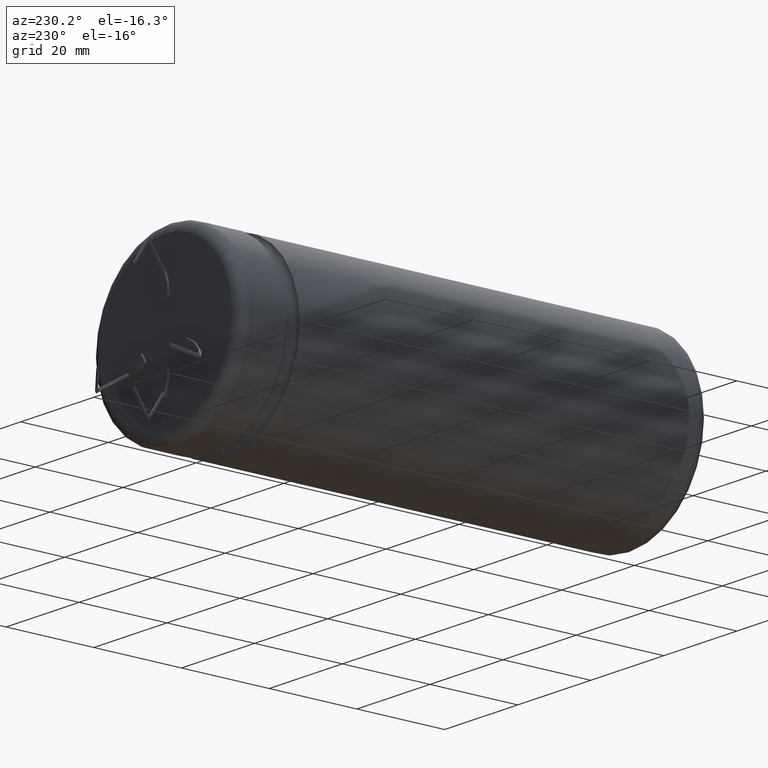
[diagram: clean part render]
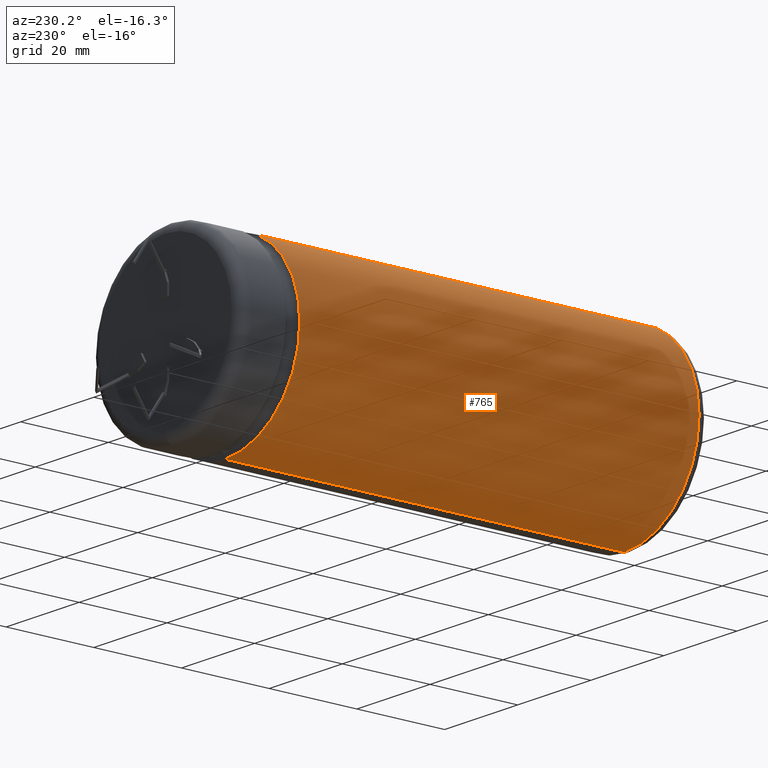
[diagram: same view with one face highlighted and labeled with its STEP entity id]
A machine part, auxiliary view. The second image highlights one B-rep face of the part: STEP entity #765.
In plain terms, the highlighted cylindrical surface (partial cylindrical patch) has radius 20.5 mm, axis along (-0, -1, -0).
Its self-contained STEP definition (entity closure, byte-faithful):
#22 = LINE ( 'NONE', #4273, #4017 ) ;
#73 = ORIENTED_EDGE ( 'NONE', *, *, #4581, .F. ) ;
#97 = EDGE_CURVE ( 'NONE', #2142, #2742, #2068, .T. ) ;
#106 = DIRECTION ( 'NONE',  ( -0.0000000000000000000, 1.000000000000000000, -0.0000000000000000000 ) ) ;
#107 = B_SPLINE_CURVE_WITH_KNOTS ( 'NONE', 3,
 ( #847, #1236, #1990, #4563 ),
 .UNSPECIFIED., .F., .F.,
 ( 4, 4 ),
 ( 0.0000000000000000000, 1.000000000000000000 ),
 .UNSPECIFIED. ) ;
#141 = VERTEX_POINT ( 'NONE', #1164 ) ;
#162 = CARTESIAN_POINT ( 'NONE',  ( -0.5674753198208053500, 6.064561765221945700, 20.49732257852247100 ) ) ;
#163 = CARTESIAN_POINT ( 'NONE',  ( -0.7256537510520075800, 8.120540105953827100, 20.48801072819554000 ) ) ;
#166 = B_SPLINE_CURVE_WITH_KNOTS ( 'NONE', 3,
 ( #2228, #2653, #1838, #1176 ),
 .UNSPECIFIED., .F., .F.,
 ( 4, 4 ),
 ( 0.5076699967697231300, 1.000000000000000000 ),
 .UNSPECIFIED. ) ;
#170 = CARTESIAN_POINT ( 'NONE',  ( -0.9926051864990509400, 7.339448020672878500, 20.48196916501047900 ) ) ;
#184 = CARTESIAN_POINT ( 'NONE',  ( -1.487609038079153600, 7.005761591733911300, 20.44595361801022200 ) ) ;
#188 = CARTESIAN_POINT ( 'NONE',  ( 1.471810051500736800E-010, 11.22587473860310900, 20.49999762134849800 ) ) ;
#198 = EDGE_CURVE ( 'NONE', #3463, #2552, #3583, .T. ) ;
#223 = CARTESIAN_POINT ( 'NONE',  ( -2.643939066426523100E-010, 5.638215953928424900, 20.49999993557945300 ) ) ;
#225 = CARTESIAN_POINT ( 'NONE',  ( -1.487609038079157800, 11.30602379685902100, 20.44595361801022200 ) ) ;
#243 = CARTESIAN_POINT ( 'NONE',  ( -0.9926095621156372200, 11.27930733385464600, 20.48196884664886900 ) ) ;
#253 = CARTESIAN_POINT ( 'NONE',  ( -1.099109105354247200, 18.69498820710443700, 20.47143992718306300 ) ) ;
#263 = CARTESIAN_POINT ( 'NONE',  ( 3.908050081328938400E-009, 9.590142117467486600, 20.49999515539574400 ) ) ;
#284 = CARTESIAN_POINT ( 'NONE',  ( -0.9046361600637224900, 18.63904554929092700, 20.48003011271968900 ) ) ;
#301 = CARTESIAN_POINT ( 'NONE',  ( -1.487609038079153600, 13.95202954761075300, 20.44595361801022200 ) ) ;
#304 = B_SPLINE_CURVE_WITH_KNOTS ( 'NONE', 3,
 ( #4363, #2158, #2540, #2905 ),
 .UNSPECIFIED., .F., .F.,
 ( 4, 4 ),
 ( 0.0000000000000000000, 0.4923300032275103000 ),
 .UNSPECIFIED. ) ;
#323 = EDGE_CURVE ( 'NONE', #4175, #4547, #3081, .T. ) ;
#330 = CARTESIAN_POINT ( 'NONE',  ( -8.792321618209400800E-010, 3.805932654816530200, 20.49998773084443100 ) ) ;
#333 = AXIS2_PLACEMENT_3D ( 'NONE', #3186, #953, #930 ) ;
#359 = VERTEX_POINT ( 'NONE', #2803 ) ;
#380 = DIRECTION ( 'NONE',  ( -0.0000000000000000000, -1.000000000000000000, -0.0000000000000000000 ) ) ;
#386 = VECTOR ( 'NONE', #3260, 1000.000000000000000 ) ;
#396 = CARTESIAN_POINT ( 'NONE',  ( -0.1169219906838780100, 9.242661177577039300, 20.49999996244456900 ) ) ;
#456 = DIRECTION ( 'NONE',  ( 0.0000000000000000000, -1.000000000000000000, 0.0000000000000000000 ) ) ;
#476 = CARTESIAN_POINT ( 'NONE',  ( -0.1067635124500709000, 5.593961633424571600, 20.49972198719800400 ) ) ;
#508 = CARTESIAN_POINT ( 'NONE',  ( -2.643939066426523100E-010, 5.638215953928424900, 20.49999993557945300 ) ) ;
#556 = CARTESIAN_POINT ( 'NONE',  ( -0.4963054917962677100, 11.25259107606801500, 20.49999138178590700 ) ) ;
#560 = VECTOR ( 'NONE', #1940, 1000.000000000000000 ) ;
#573 = DIRECTION ( 'NONE',  ( -0.0000000000000000000, -1.000000000000000000, -0.0000000000000000000 ) ) ;
#645 = CARTESIAN_POINT ( 'NONE',  ( 0.0000000000000000000, 107.0000000000000000, -20.50000000000000000 ) ) ;
#656 = VECTOR ( 'NONE', #2720, 1000.000000000000000 ) ;
#659 = CARTESIAN_POINT ( 'NONE',  ( -0.9926051860871243400, 13.80927270982353700, 20.48196916504045000 ) ) ;
#675 = AXIS2_PLACEMENT_3D ( 'NONE', #2299, #106, #1547 ) ;
#678 = ORIENTED_EDGE ( 'NONE', *, *, #3660, .F. ) ;
#694 = EDGE_LOOP ( 'NONE', ( #1502, #760, #2605, #3735, #1228, #73, #4393, #4497, #2736, #4444, #3828, #3578, #1627, #3727, #3699, #2051, #1823, #3266, #2014, #4618, #1761, #3972, #1598, #2122, #3797, #2032, #4500, #3857, #3798, #678, #4283, #1025, #3374, #4191, #1607 ) ) ;
#703 = CARTESIAN_POINT ( 'NONE',  ( -8.799120396329749000E-010, 13.15961153051858000, 20.49998773082111500 ) ) ;
#751 = CARTESIAN_POINT ( 'NONE',  ( -8.806211603291655700E-010, 13.52376457376976400, 20.49998773079722600 ) ) ;
#760 = ORIENTED_EDGE ( 'NONE', *, *, #4679, .F. ) ;
#765 = ADVANCED_FACE ( 'NONE', ( #1585 ), #1181, .T. ) ;
#780 = CARTESIAN_POINT ( 'NONE',  ( -0.3507488586148771500, 9.309453963844873700, 20.49699917642044200 ) ) ;
#793 = CARTESIAN_POINT ( 'NONE',  ( 2.708323434482929300E-012, 9.209264784675586000, 20.49999998710253700 ) ) ;
#819 = CARTESIAN_POINT ( 'NONE',  ( -0.2338439805220736100, 9.276057570217599100, 20.49899967669878000 ) ) ;
#836 = EDGE_CURVE ( 'NONE', #2742, #4386, #3418, .T. ) ;
#847 = CARTESIAN_POINT ( 'NONE',  ( -0.1992673543678380700, 4.725246544320424600, 20.49903150203646300 ) ) ;
#873 = CARTESIAN_POINT ( 'NONE',  ( -0.3507488586148730900, 8.011420447885997800, 20.49699917642044200 ) ) ;
#878 = VERTEX_POINT ( 'NONE', #4320 ) ;
#921 = DIRECTION ( 'NONE',  ( 0.0000000000000000000, -1.000000000000000000, 0.0000000000000000000 ) ) ;
#930 = DIRECTION ( 'NONE',  ( 0.0000000000000000000, 0.0000000000000000000, -1.000000000000000000 ) ) ;
#942 = CARTESIAN_POINT ( 'NONE',  ( -1.487609038079157800, 18.80687351959829800, 20.44595361801022200 ) ) ;
#953 = DIRECTION ( 'NONE',  ( -0.0000000000000000000, -1.000000000000000000, -0.0000000000000000000 ) ) ;
#970 = CARTESIAN_POINT ( 'NONE',  ( -8.813040468022290400E-010, 7.053816141572133000, 20.49998773077389600 ) ) ;
#971 = VERTEX_POINT ( 'NONE', #2495 ) ;
#973 = DIRECTION ( 'NONE',  ( 0.0000000000000000000, -1.000000000000000000, 0.0000000000000000000 ) ) ;
#1000 = CARTESIAN_POINT ( 'NONE',  ( -0.9046580500798630000, 18.36304375062566400, 20.48002914580215600 ) ) ;
#1015 = B_SPLINE_CURVE_WITH_KNOTS ( 'NONE', 3,
 ( #2550, #4036, #1821, #2201 ),
 .UNSPECIFIED., .F., .F.,
 ( 4, 4 ),
 ( 0.0000000000000000000, 1.000000000000000000 ),
 .UNSPECIFIED. ) ;
#1025 = ORIENTED_EDGE ( 'NONE', *, *, #1130, .F. ) ;
#1043 = CARTESIAN_POINT ( 'NONE',  ( -1.487609038079153600, 10.01811258485629700, 20.44595361801022200 ) ) ;
#1046 = EDGE_CURVE ( 'NONE', #2254, #3288, #22, .T. ) ;
#1079 = EDGE_CURVE ( 'NONE', #2924, #1403, #3800, .T. ) ;
#1106 = EDGE_CURVE ( 'NONE', #2849, #2255, #3764, .T. ) ;
#1111 = VERTEX_POINT ( 'NONE', #1118 ) ;
#1118 = CARTESIAN_POINT ( 'NONE',  ( -0.9129696222697449800, 9.552968582505579700, 20.47966031136289900 ) ) ;
#1130 = EDGE_CURVE ( 'NONE', #971, #141, #3001, .T. ) ;
#1140 = VERTEX_POINT ( 'NONE', #703 ) ;
#1164 = CARTESIAN_POINT ( 'NONE',  ( -1.487609038079157800, 16.19708683617947300, 20.44595361801022200 ) ) ;
#1176 = CARTESIAN_POINT ( 'NONE',  ( -1.487609038079153600, 13.58768636036115900, 20.44595361801022200 ) ) ;
#1181 = CYLINDRICAL_SURFACE ( 'NONE', #333, 20.50000000000000000 ) ;
#1185 = CARTESIAN_POINT ( 'NONE',  ( 0.0000000000000000000, 93.42314000000000400, 20.50000000000000000 ) ) ;
#1228 = ORIENTED_EDGE ( 'NONE', *, *, #2714, .F. ) ;
#1236 = CARTESIAN_POINT ( 'NONE',  ( -0.6291296488336007900, 4.848472119278113700, 20.49485288890772900 ) ) ;
#1244 = CARTESIAN_POINT ( 'NONE',  ( -1.487609038079157800, 7.005761591733911300, 20.44595361801022200 ) ) ;
#1259 = CARTESIAN_POINT ( 'NONE',  ( -0.07117598858856702400, 5.608713076750726500, 20.49990732868943200 ) ) ;
#1268 = VECTOR ( 'NONE', #380, 1000.000000000000000 ) ;
#1278 = CARTESIAN_POINT ( 'NONE',  ( -1.028105623805817700, 6.535161459936540000, 20.47938622012172900 ) ) ;
#1281 = CARTESIAN_POINT ( 'NONE',  ( 3.908050081328938400E-009, 9.590142117467486600, 20.49999515539574400 ) ) ;
#1300 = DIRECTION ( 'NONE',  ( 0.0000000000000000000, 1.000000000000000000, 0.0000000000000000000 ) ) ;
#1310 = B_SPLINE_CURVE_WITH_KNOTS ( 'NONE', 3,
 ( #188, #556, #243, #225 ),
 .UNSPECIFIED., .F., .F.,
 ( 4, 4 ),
 ( 0.3108603276531529100, 1.000000000000000000 ),
 .UNSPECIFIED. ) ;
#1354 = EDGE_CURVE ( 'NONE', #4673, #2142, #2735, .T. ) ;
#1403 = VERTEX_POINT ( 'NONE', #3037 ) ;
#1411 = VECTOR ( 'NONE', #3647, 1000.000000000000000 ) ;
#1439 = CARTESIAN_POINT ( 'NONE',  ( -1.104661260160899400, 9.607467109760246900, 20.47111482576513800 ) ) ;
#1444 = EDGE_CURVE ( 'NONE', #1480, #2924, #1759, .T. ) ;
#1479 = CARTESIAN_POINT ( 'NONE',  ( -0.4963025244733989500, 13.66651861923412500, 20.49997595631639800 ) ) ;
#1480 = VERTEX_POINT ( 'NONE', #476 ) ;
#1502 = ORIENTED_EDGE ( 'NONE', *, *, #1354, .F. ) ;
#1519 = CARTESIAN_POINT ( 'NONE',  ( -1.487609038079153600, 13.58768636036115900, 20.44595361801022200 ) ) ;
#1536 = EDGE_CURVE ( 'NONE', #4391, #3540, #3845, .T. ) ;
#1546 = VECTOR ( 'NONE', #2061, 1000.000000000000000 ) ;
#1547 = DIRECTION ( 'NONE',  ( 0.0000000000000000000, 0.0000000000000000000, 1.000000000000000000 ) ) ;
#1581 = CARTESIAN_POINT ( 'NONE',  ( 2.708323434482929300E-012, 9.209264784675586000, 20.49999998710253700 ) ) ;
#1585 = FACE_OUTER_BOUND ( 'NONE', #694, .T. ) ;
#1598 = ORIENTED_EDGE ( 'NONE', *, *, #3338, .F. ) ;
#1607 = ORIENTED_EDGE ( 'NONE', *, *, #97, .F. ) ;
#1627 = ORIENTED_EDGE ( 'NONE', *, *, #3368, .F. ) ;
#1663 = VECTOR ( 'NONE', #3111, 1000.000000000000000 ) ;
#1664 = B_SPLINE_CURVE_WITH_KNOTS ( 'NONE', 3,
 ( #508, #3441, #1259, #3478 ),
 .UNSPECIFIED., .F., .F.,
 ( 4, 4 ),
 ( 0.9349822453035107100, 1.000000000000000000 ),
 .UNSPECIFIED. ) ;
#1666 = CARTESIAN_POINT ( 'NONE',  ( -4.398895645336903300E-009, 17.55091877952359200, 20.49999542117416200 ) ) ;
#1691 = EDGE_CURVE ( 'NONE', #4547, #3193, #2903, .T. ) ;
#1717 = DIRECTION ( 'NONE',  ( 0.0000000000000000000, -1.000000000000000000, 0.0000000000000000000 ) ) ;
#1724 = CARTESIAN_POINT ( 'NONE',  ( -0.9046799400944534100, 18.08704195196038700, 20.48002817884953000 ) ) ;
#1726 = CARTESIAN_POINT ( 'NONE',  ( 1.471810051500736800E-010, 11.22587473860310900, 20.49999762134849800 ) ) ;
#1730 = CARTESIAN_POINT ( 'NONE',  ( -1.487609038079153600, 5.094923105737295000, 20.44595361801022200 ) ) ;
#1756 = CIRCLE ( 'NONE', #675, 20.50000000000000000 ) ;
#1759 = B_SPLINE_CURVE_WITH_KNOTS ( 'NONE', 3,
 ( #3432, #162, #1278, #3830 ),
 .UNSPECIFIED., .F., .F.,
 ( 4, 4 ),
 ( 0.0000000000000000000, 1.000000000000000000 ),
 .UNSPECIFIED. ) ;
#1761 = ORIENTED_EDGE ( 'NONE', *, *, #2565, .F. ) ;
#1772 = CARTESIAN_POINT ( 'NONE',  ( 7.579655199466190600E-009, 11.52282658626166000, 20.49999761387757100 ) ) ;
#1786 = LINE ( 'NONE', #4229, #1546 ) ;
#1796 = CARTESIAN_POINT ( 'NONE',  ( -0.6033290408717298900, 17.72433261819313100, 20.49334030520615000 ) ) ;
#1803 = EDGE_CURVE ( 'NONE', #2120, #1480, #1664, .T. ) ;
#1821 = CARTESIAN_POINT ( 'NONE',  ( -0.6291295622174023500, 5.153670045446139300, 20.49485288974971200 ) ) ;
#1823 = ORIENTED_EDGE ( 'NONE', *, *, #1923, .F. ) ;
#1838 = CARTESIAN_POINT ( 'NONE',  ( -0.9926051856652929900, 13.44499290460503700, 20.48196916507113800 ) ) ;
#1892 = CARTESIAN_POINT ( 'NONE',  ( -1.296232898158105700, 9.661965634128124600, 20.45987778514559700 ) ) ;
#1895 = CARTESIAN_POINT ( 'NONE',  ( -0.9047018301075023800, 17.81104015329511400, 20.48002721186180600 ) ) ;
#1923 = EDGE_CURVE ( 'NONE', #3193, #1111, #4228, .T. ) ;
#1937 = B_SPLINE_CURVE_WITH_KNOTS ( 'NONE', 3,
 ( #301, #659, #1479, #2196 ),
 .UNSPECIFIED., .F., .F.,
 ( 4, 4 ),
 ( 0.0000000000000000000, 0.4923300032331090500 ),
 .UNSPECIFIED. ) ;
#1940 = DIRECTION ( 'NONE',  ( -0.0000000000000000000, -1.000000000000000000, -0.0000000000000000000 ) ) ;
#1990 = CARTESIAN_POINT ( 'NONE',  ( -1.058859780637150900, 4.971697530779607600, 20.47714860565210800 ) ) ;
#2004 = CARTESIAN_POINT ( 'NONE',  ( 0.0000000000000000000, 2.361600000000005500, 0.0000000000000000000 ) ) ;
#2012 = EDGE_CURVE ( 'NONE', #359, #2254, #107, .T. ) ;
#2014 = ORIENTED_EDGE ( 'NONE', *, *, #323, .F. ) ;
#2015 = DIRECTION ( 'NONE',  ( 0.0000000000000000000, 0.0000000000000000000, 1.000000000000000000 ) ) ;
#2032 = ORIENTED_EDGE ( 'NONE', *, *, #4588, .F. ) ;
#2035 = CARTESIAN_POINT ( 'NONE',  ( -1.487609038079157800, 13.58768636036117300, 20.44595361801022200 ) ) ;
#2051 = ORIENTED_EDGE ( 'NONE', *, *, #4003, .F. ) ;
#2061 = DIRECTION ( 'NONE',  ( 0.0000000000000000000, -1.000000000000000000, 0.0000000000000000000 ) ) ;
#2068 = B_SPLINE_CURVE_WITH_KNOTS ( 'NONE', 3,
 ( #4027, #4004, #1796, #1895 ),
 .UNSPECIFIED., .F., .F.,
 ( 4, 4 ),
 ( 0.6291467272315028900, 1.000000000000000000 ),
 .UNSPECIFIED. ) ;
#2079 = CARTESIAN_POINT ( 'NONE',  ( -8.813040468022290400E-010, 7.053816141572133000, 20.49998773077389600 ) ) ;
#2099 = VECTOR ( 'NONE', #3470, 1000.000000000000000 ) ;
#2108 = CARTESIAN_POINT ( 'NONE',  ( 2.510525938252074500E-015, 93.42314000000000400, -20.50000000000000000 ) ) ;
#2110 = VERTEX_POINT ( 'NONE', #3834 ) ;
#2114 = DIRECTION ( 'NONE',  ( 0.0000000000000000000, -1.000000000000000000, 0.0000000000000000000 ) ) ;
#2120 = VERTEX_POINT ( 'NONE', #223 ) ;
#2122 = ORIENTED_EDGE ( 'NONE', *, *, #3962, .F. ) ;
#2130 = VERTEX_POINT ( 'NONE', #4642 ) ;
#2133 = CARTESIAN_POINT ( 'NONE',  ( 0.0000000000000000000, 2.361600000000005500, 20.49999999999999600 ) ) ;
#2142 = VERTEX_POINT ( 'NONE', #1666 ) ;
#2158 = CARTESIAN_POINT ( 'NONE',  ( -0.9926051852536280600, 4.091190285856305000, 20.48196916510109500 ) ) ;
#2196 = CARTESIAN_POINT ( 'NONE',  ( -8.806211603291655700E-010, 13.52376457376976400, 20.49998773079722600 ) ) ;
#2201 = CARTESIAN_POINT ( 'NONE',  ( -0.1992673543678380700, 4.725246544320424600, 20.49903150203646300 ) ) ;
#2226 = VERTEX_POINT ( 'NONE', #3218 ) ;
#2228 = CARTESIAN_POINT ( 'NONE',  ( -8.799120396329749000E-010, 13.15961153051858000, 20.49998773082111500 ) ) ;
#2254 = VERTEX_POINT ( 'NONE', #1730 ) ;
#2255 = VERTEX_POINT ( 'NONE', #263 ) ;
#2292 = CARTESIAN_POINT ( 'NONE',  ( -0.9129696222697490900, 8.175099936300487300, 20.47966031136289900 ) ) ;
#2299 = CARTESIAN_POINT ( 'NONE',  ( 0.0000000000000000000, 93.42314000000000400, 0.0000000000000000000 ) ) ;
#2318 = CARTESIAN_POINT ( 'NONE',  ( 2.510525938252074500E-015, 107.0000000000000000, 20.50000000000000000 ) ) ;
#2353 = CARTESIAN_POINT ( 'NONE',  ( -0.5382233186258208500, 8.065980278232658000, 20.49379107496606200 ) ) ;
#2370 = CARTESIAN_POINT ( 'NONE',  ( -1.487609038079153600, 10.01811258485629700, 20.44595361801022200 ) ) ;
#2395 = CARTESIAN_POINT ( 'NONE',  ( 2.510525938252074500E-015, 107.0000000000000000, 20.50000000000000000 ) ) ;
#2495 = CARTESIAN_POINT ( 'NONE',  ( -1.487609038079157800, 18.80687351959829800, 20.44595361801022200 ) ) ;
#2499 = CARTESIAN_POINT ( 'NONE',  ( 2.510525938252074500E-015, 107.0000000000000000, 20.50000000000000000 ) ) ;
#2520 = VERTEX_POINT ( 'NONE', #970 ) ;
#2526 = CARTESIAN_POINT ( 'NONE',  ( -0.9926085831754789500, 9.875454890744265400, 20.48196891787470600 ) ) ;
#2540 = CARTESIAN_POINT ( 'NONE',  ( -0.4963025240457471500, 3.948561447790754900, 20.49997595640897100 ) ) ;
#2550 = CARTESIAN_POINT ( 'NONE',  ( -1.487609038079157800, 6.010516738381363100, 20.44595361801022200 ) ) ;
#2552 = VERTEX_POINT ( 'NONE', #1726 ) ;
#2565 = EDGE_CURVE ( 'NONE', #2255, #3513, #4160, .T. ) ;
#2605 = ORIENTED_EDGE ( 'NONE', *, *, #3078, .T. ) ;
#2627 = AXIS2_PLACEMENT_3D ( 'NONE', #2004, #1300, #2015 ) ;
#2635 = CARTESIAN_POINT ( 'NONE',  ( -0.9129696222697490900, 8.175099936300487300, 20.47966031136289900 ) ) ;
#2646 = LINE ( 'NONE', #645, #3608 ) ;
#2653 = CARTESIAN_POINT ( 'NONE',  ( -0.4963025242569632500, 13.30230219500781400, 20.49997595636325100 ) ) ;
#2659 = CARTESIAN_POINT ( 'NONE',  ( -1.487609038079157800, 9.716464161382790000, 20.44595361801022200 ) ) ;
#2679 = VECTOR ( 'NONE', #921, 1000.000000000000000 ) ;
#2714 = EDGE_CURVE ( 'NONE', #4072, #3450, #3228, .T. ) ;
#2720 = DIRECTION ( 'NONE',  ( 0.0000000000000000000, 1.000000000000000000, 0.0000000000000000000 ) ) ;
#2725 = B_SPLINE_CURVE_WITH_KNOTS ( 'NONE', 3,
 ( #284, #253, #3202, #942 ),
 .UNSPECIFIED., .F., .F.,
 ( 4, 4 ),
 ( 0.0000000000000000000, 1.000000000000000000 ),
 .UNSPECIFIED. ) ;
#2729 = CARTESIAN_POINT ( 'NONE',  ( -0.9129696222697490900, 8.175099936300487300, 20.47966031136289900 ) ) ;
#2735 = LINE ( 'NONE', #2318, #3856 ) ;
#2736 = ORIENTED_EDGE ( 'NONE', *, *, #2979, .F. ) ;
#2737 = LINE ( 'NONE', #4612, #3196 ) ;
#2742 = VERTEX_POINT ( 'NONE', #4636 ) ;
#2770 = CIRCLE ( 'NONE', #2627, 20.50000000000000000 ) ;
#2790 = CARTESIAN_POINT ( 'NONE',  ( 2.510525938252074500E-015, 107.0000000000000000, 20.50000000000000000 ) ) ;
#2803 = CARTESIAN_POINT ( 'NONE',  ( -0.1992673543678380700, 4.725246544320424600, 20.49903150203646300 ) ) ;
#2815 = VECTOR ( 'NONE', #456, 1000.000000000000000 ) ;
#2836 = CARTESIAN_POINT ( 'NONE',  ( 2.510525938252074500E-015, 107.0000000000000000, 20.50000000000000000 ) ) ;
#2849 = VERTEX_POINT ( 'NONE', #2370 ) ;
#2863 = CARTESIAN_POINT ( 'NONE',  ( -0.3507488586148730900, 8.011420447885997800, 20.49699917642044200 ) ) ;
#2903 = B_SPLINE_CURVE_WITH_KNOTS ( 'NONE', 3,
 ( #873, #2353, #163, #2729 ),
 .UNSPECIFIED., .F., .F.,
 ( 4, 4 ),
 ( 0.0000000000000000000, 1.000000000000000000 ),
 .UNSPECIFIED. ) ;
#2905 = CARTESIAN_POINT ( 'NONE',  ( -8.792321618209400800E-010, 3.805932654816530200, 20.49998773084443100 ) ) ;
#2922 = EDGE_CURVE ( 'NONE', #2226, #3450, #2770, .T. ) ;
#2924 = VERTEX_POINT ( 'NONE', #184 ) ;
#2967 = CARTESIAN_POINT ( 'NONE',  ( -0.4963055410842323600, 11.76897795808321800, 20.49999135508178600 ) ) ;
#2979 = EDGE_CURVE ( 'NONE', #1403, #359, #1015, .T. ) ;
#3001 = LINE ( 'NONE', #3596, #1411 ) ;
#3002 = VERTEX_POINT ( 'NONE', #751 ) ;
#3037 = CARTESIAN_POINT ( 'NONE',  ( -1.487609038079157800, 6.010516738381363100, 20.44595361801022200 ) ) ;
#3078 = EDGE_CURVE ( 'NONE', #3996, #2226, #2646, .T. ) ;
#3081 = LINE ( 'NONE', #3814, #2099 ) ;
#3111 = DIRECTION ( 'NONE',  ( -0.0000000000000000000, -1.000000000000000000, -0.0000000000000000000 ) ) ;
#3133 = CARTESIAN_POINT ( 'NONE',  ( 2.510525938252074500E-015, 107.0000000000000000, 20.50000000000000000 ) ) ;
#3139 = EDGE_CURVE ( 'NONE', #1140, #4391, #166, .T. ) ;
#3140 = EDGE_CURVE ( 'NONE', #3513, #4175, #4660, .T. ) ;
#3165 = B_SPLINE_CURVE_WITH_KNOTS ( 'NONE', 3,
 ( #4365, #1439, #1892, #3744 ),
 .UNSPECIFIED., .F., .F.,
 ( 4, 4 ),
 ( 0.0000000000000000000, 1.000000000000000000 ),
 .UNSPECIFIED. ) ;
#3186 = CARTESIAN_POINT ( 'NONE',  ( 0.0000000000000000000, 107.0000000000000000, 0.0000000000000000000 ) ) ;
#3193 = VERTEX_POINT ( 'NONE', #2635 ) ;
#3196 = VECTOR ( 'NONE', #2114, 1000.000000000000000 ) ;
#3202 = CARTESIAN_POINT ( 'NONE',  ( -1.293459674163012200, 18.75093086178478400, 20.46007955969506400 ) ) ;
#3209 = CARTESIAN_POINT ( 'NONE',  ( -0.9046361600637224900, 18.63904554929092700, 20.48003011271968900 ) ) ;
#3218 = CARTESIAN_POINT ( 'NONE',  ( 2.510525938252074100E-015, 2.361600000000005500, -20.49999999999999600 ) ) ;
#3228 = LINE ( 'NONE', #2499, #1268 ) ;
#3260 = DIRECTION ( 'NONE',  ( -0.0000000000000000000, -1.000000000000000000, -0.0000000000000000000 ) ) ;
#3266 = ORIENTED_EDGE ( 'NONE', *, *, #1691, .F. ) ;
#3288 = VERTEX_POINT ( 'NONE', #3412 ) ;
#3320 = CARTESIAN_POINT ( 'NONE',  ( 7.579655199466190600E-009, 11.52282658626166000, 20.49999761387757100 ) ) ;
#3338 = EDGE_CURVE ( 'NONE', #878, #2849, #1786, .T. ) ;
#3352 = CARTESIAN_POINT ( 'NONE',  ( -0.9926099529036013200, 12.01512873713159400, 20.48196881821587200 ) ) ;
#3368 = EDGE_CURVE ( 'NONE', #2520, #2120, #3604, .T. ) ;
#3374 = ORIENTED_EDGE ( 'NONE', *, *, #3496, .F. ) ;
#3391 = B_SPLINE_CURVE_WITH_KNOTS ( 'NONE', 3,
 ( #3616, #3352, #2967, #3320 ),
 .UNSPECIFIED., .F., .F.,
 ( 4, 4 ),
 ( 0.0000000000000000000, 0.6891396211990038500 ),
 .UNSPECIFIED. ) ;
#3412 = CARTESIAN_POINT ( 'NONE',  ( -1.487609038079157800, 4.233821869066400900, 20.44595361801022200 ) ) ;
#3418 = B_SPLINE_CURVE_WITH_KNOTS ( 'NONE', 3,
 ( #3906, #1724, #1000, #3209 ),
 .UNSPECIFIED., .F., .F.,
 ( 4, 4 ),
 ( 0.0000000000000000000, 1.000000000000000000 ),
 .UNSPECIFIED. ) ;
#3432 = CARTESIAN_POINT ( 'NONE',  ( -0.1067635124500709000, 5.593961633424571600, 20.49972198719800400 ) ) ;
#3437 = CARTESIAN_POINT ( 'NONE',  ( -0.9046361600637224900, 18.63904554929092700, 20.48003011271968900 ) ) ;
#3441 = CARTESIAN_POINT ( 'NONE',  ( -0.03558799084967691900, 5.623464516997630700, 20.49999995108428100 ) ) ;
#3442 = CARTESIAN_POINT ( 'NONE',  ( -1.487609038079153600, 12.26128104296442300, 20.44595361801022200 ) ) ;
#3446 = VERTEX_POINT ( 'NONE', #3548 ) ;
#3450 = VERTEX_POINT ( 'NONE', #2133 ) ;
#3463 = VERTEX_POINT ( 'NONE', #1772 ) ;
#3465 = LINE ( 'NONE', #2836, #386 ) ;
#3470 = DIRECTION ( 'NONE',  ( 0.0000000000000000000, -1.000000000000000000, 0.0000000000000000000 ) ) ;
#3478 = CARTESIAN_POINT ( 'NONE',  ( -0.1067635124500709000, 5.593961633424571600, 20.49972198719800400 ) ) ;
#3496 = EDGE_CURVE ( 'NONE', #4386, #971, #2725, .T. ) ;
#3513 = VERTEX_POINT ( 'NONE', #1581 ) ;
#3534 = CARTESIAN_POINT ( 'NONE',  ( -0.4963025246847526700, 7.196632058551652600, 20.49997595627064200 ) ) ;
#3540 = VERTEX_POINT ( 'NONE', #3442 ) ;
#3548 = CARTESIAN_POINT ( 'NONE',  ( -1.487609038079153600, 13.95202954761075300, 20.44595361801022200 ) ) ;
#3578 = ORIENTED_EDGE ( 'NONE', *, *, #1803, .F. ) ;
#3583 = LINE ( 'NONE', #2395, #560 ) ;
#3596 = CARTESIAN_POINT ( 'NONE',  ( -1.487609038079157800, 18.80687351959829800, 20.44595361801022200 ) ) ;
#3604 = LINE ( 'NONE', #3133, #1663 ) ;
#3608 = VECTOR ( 'NONE', #3947, 1000.000000000000000 ) ;
#3616 = CARTESIAN_POINT ( 'NONE',  ( -1.487609038079153600, 12.26128104296442300, 20.44595361801022200 ) ) ;
#3647 = DIRECTION ( 'NONE',  ( 0.0000000000000000000, -1.000000000000000000, 0.0000000000000000000 ) ) ;
#3653 = VECTOR ( 'NONE', #573, 1000.000000000000000 ) ;
#3660 = EDGE_CURVE ( 'NONE', #3446, #3002, #1937, .T. ) ;
#3691 = B_SPLINE_CURVE_WITH_KNOTS ( 'NONE', 3,
 ( #3849, #170, #3534, #2079 ),
 .UNSPECIFIED., .F., .F.,
 ( 4, 4 ),
 ( 0.0000000000000000000, 0.4923300032358751100 ),
 .UNSPECIFIED. ) ;
#3699 = ORIENTED_EDGE ( 'NONE', *, *, #3824, .F. ) ;
#3727 = ORIENTED_EDGE ( 'NONE', *, *, #3955, .F. ) ;
#3735 = ORIENTED_EDGE ( 'NONE', *, *, #2922, .T. ) ;
#3744 = CARTESIAN_POINT ( 'NONE',  ( -1.487609038079157800, 9.716464161382790000, 20.44595361801022200 ) ) ;
#3759 = LINE ( 'NONE', #2659, #2815 ) ;
#3764 = B_SPLINE_CURVE_WITH_KNOTS ( 'NONE', 3,
 ( #1043, #2526, #4420, #1281 ),
 .UNSPECIFIED., .F., .F.,
 ( 4, 4 ),
 ( 0.0000000000000000000, 0.6080032361089891000 ),
 .UNSPECIFIED. ) ;
#3797 = ORIENTED_EDGE ( 'NONE', *, *, #198, .F. ) ;
#3798 = ORIENTED_EDGE ( 'NONE', *, *, #3961, .F. ) ;
#3800 = LINE ( 'NONE', #1244, #2679 ) ;
#3814 = CARTESIAN_POINT ( 'NONE',  ( -0.3507488586148771500, 9.309453963844873700, 20.49699917642044200 ) ) ;
#3824 = EDGE_CURVE ( 'NONE', #2110, #2130, #3759, .T. ) ;
#3828 = ORIENTED_EDGE ( 'NONE', *, *, #1444, .F. ) ;
#3830 = CARTESIAN_POINT ( 'NONE',  ( -1.487609038079153600, 7.005761591733911300, 20.44595361801022200 ) ) ;
#3834 = CARTESIAN_POINT ( 'NONE',  ( -1.487609038079157800, 9.716464161382790000, 20.44595361801022200 ) ) ;
#3845 = LINE ( 'NONE', #2035, #4127 ) ;
#3849 = CARTESIAN_POINT ( 'NONE',  ( -1.487609038079153600, 7.482266731005854200, 20.44595361801022200 ) ) ;
#3856 = VECTOR ( 'NONE', #4139, 1000.000000000000000 ) ;
#3857 = ORIENTED_EDGE ( 'NONE', *, *, #3139, .F. ) ;
#3906 = CARTESIAN_POINT ( 'NONE',  ( -0.9047018301075023800, 17.81104015329511400, 20.48002721186180600 ) ) ;
#3947 = DIRECTION ( 'NONE',  ( -0.0000000000000000000, -1.000000000000000000, -0.0000000000000000000 ) ) ;
#3955 = EDGE_CURVE ( 'NONE', #2130, #2520, #3691, .T. ) ;
#3961 = EDGE_CURVE ( 'NONE', #3002, #1140, #3465, .T. ) ;
#3962 = EDGE_CURVE ( 'NONE', #2552, #878, #1310, .T. ) ;
#3972 = ORIENTED_EDGE ( 'NONE', *, *, #1106, .F. ) ;
#3996 = VERTEX_POINT ( 'NONE', #2108 ) ;
#4003 = EDGE_CURVE ( 'NONE', #1111, #2110, #3165, .T. ) ;
#4004 = CARTESIAN_POINT ( 'NONE',  ( -0.3016642911070783200, 17.63762562176106400, 20.49999335003713300 ) ) ;
#4017 = VECTOR ( 'NONE', #1717, 1000.000000000000000 ) ;
#4027 = CARTESIAN_POINT ( 'NONE',  ( -4.398895645336903300E-009, 17.55091877952359200, 20.49999542117416200 ) ) ;
#4036 = CARTESIAN_POINT ( 'NONE',  ( -1.058859867029071900, 5.582093237255664400, 20.47714859936639800 ) ) ;
#4072 = VERTEX_POINT ( 'NONE', #330 ) ;
#4127 = VECTOR ( 'NONE', #973, 1000.000000000000000 ) ;
#4139 = DIRECTION ( 'NONE',  ( -0.0000000000000000000, -1.000000000000000000, -0.0000000000000000000 ) ) ;
#4160 = LINE ( 'NONE', #2790, #3653 ) ;
#4175 = VERTEX_POINT ( 'NONE', #4185 ) ;
#4185 = CARTESIAN_POINT ( 'NONE',  ( -0.3507488586148771500, 9.309453963844873700, 20.49699917642044200 ) ) ;
#4191 = ORIENTED_EDGE ( 'NONE', *, *, #836, .F. ) ;
#4228 = LINE ( 'NONE', #2292, #656 ) ;
#4229 = CARTESIAN_POINT ( 'NONE',  ( -1.487609038079157800, 11.30602379685902100, 20.44595361801022200 ) ) ;
#4268 = EDGE_CURVE ( 'NONE', #141, #3446, #2737, .T. ) ;
#4273 = CARTESIAN_POINT ( 'NONE',  ( -1.487609038079157800, 5.094923105737295000, 20.44595361801022200 ) ) ;
#4283 = ORIENTED_EDGE ( 'NONE', *, *, #4268, .F. ) ;
#4320 = CARTESIAN_POINT ( 'NONE',  ( -1.487609038079157800, 11.30602379685902100, 20.44595361801022200 ) ) ;
#4363 = CARTESIAN_POINT ( 'NONE',  ( -1.487609038079157800, 4.233821869066400900, 20.44595361801022200 ) ) ;
#4365 = CARTESIAN_POINT ( 'NONE',  ( -0.9129696222697449800, 9.552968582505579700, 20.47966031136289900 ) ) ;
#4386 = VERTEX_POINT ( 'NONE', #3437 ) ;
#4391 = VERTEX_POINT ( 'NONE', #1519 ) ;
#4393 = ORIENTED_EDGE ( 'NONE', *, *, #1046, .F. ) ;
#4420 = CARTESIAN_POINT ( 'NONE',  ( -0.4963048194460208400, 9.732798669911144200, 20.49998674950477500 ) ) ;
#4444 = ORIENTED_EDGE ( 'NONE', *, *, #1079, .F. ) ;
#4497 = ORIENTED_EDGE ( 'NONE', *, *, #2012, .F. ) ;
#4500 = ORIENTED_EDGE ( 'NONE', *, *, #1536, .F. ) ;
#4547 = VERTEX_POINT ( 'NONE', #2863 ) ;
#4563 = CARTESIAN_POINT ( 'NONE',  ( -1.487609038079153600, 5.094923105737295000, 20.44595361801022200 ) ) ;
#4581 = EDGE_CURVE ( 'NONE', #3288, #4072, #304, .T. ) ;
#4588 = EDGE_CURVE ( 'NONE', #3540, #3463, #3391, .T. ) ;
#4612 = CARTESIAN_POINT ( 'NONE',  ( -1.487609038079157800, 16.19708683617947300, 20.44595361801022200 ) ) ;
#4618 = ORIENTED_EDGE ( 'NONE', *, *, #3140, .F. ) ;
#4636 = CARTESIAN_POINT ( 'NONE',  ( -0.9047018301075023800, 17.81104015329511400, 20.48002721186180600 ) ) ;
#4642 = CARTESIAN_POINT ( 'NONE',  ( -1.487609038079153600, 7.482266731005854200, 20.44595361801022200 ) ) ;
#4660 = B_SPLINE_CURVE_WITH_KNOTS ( 'NONE', 3,
 ( #793, #396, #819, #780 ),
 .UNSPECIFIED., .F., .F.,
 ( 4, 4 ),
 ( 0.3725967474865872800, 1.000000000000000000 ),
 .UNSPECIFIED. ) ;
#4673 = VERTEX_POINT ( 'NONE', #1185 ) ;
#4679 = EDGE_CURVE ( 'NONE', #3996, #4673, #1756, .T. ) ;